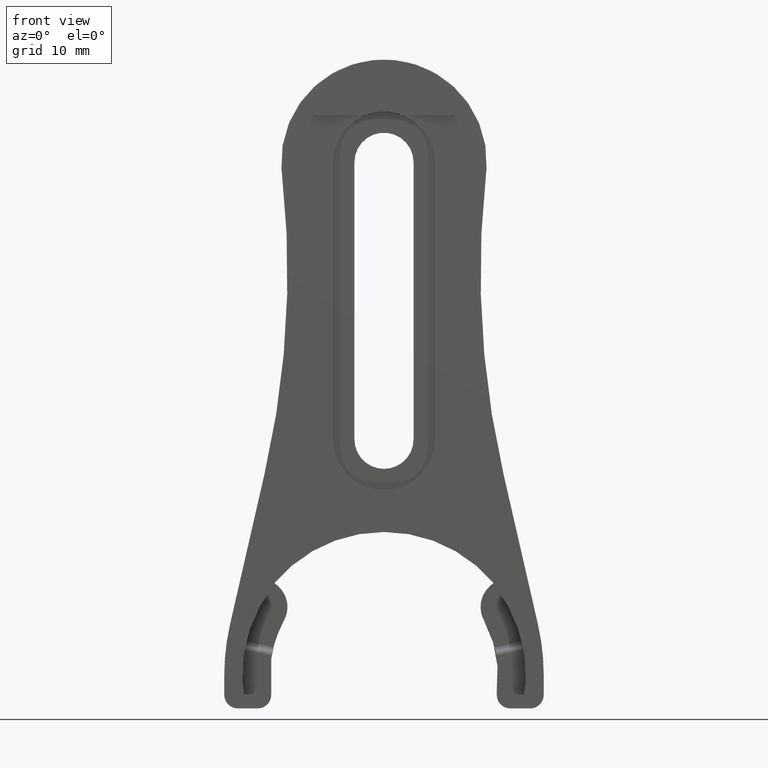
[diagram: clean part render]
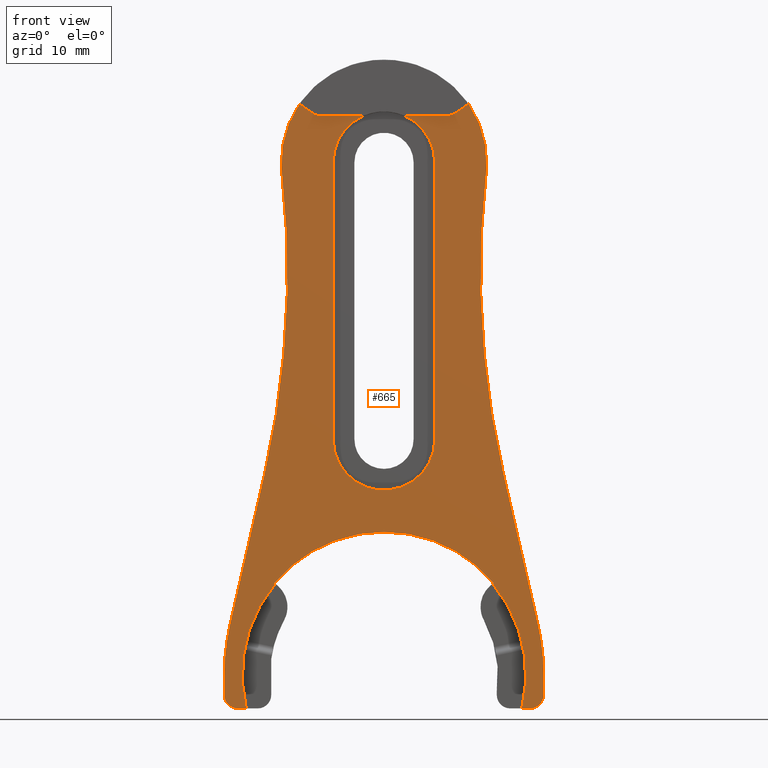
[diagram: same view with one face highlighted and labeled with its STEP entity id]
A machine part, front view. The second image highlights one B-rep face of the part: STEP entity #665.
In plain terms, the highlighted planar face has unit normal (0, 1, 0).
Its self-contained STEP definition (entity closure, byte-faithful):
#5 = CARTESIAN_POINT ( 'NONE',  ( -0.2849996849746324100, -0.2249999999999999800, 0.0007937572898362559900 ) ) ;
#19 = VECTOR ( 'NONE', #528, 39.37007874015748100 ) ;
#25 = CIRCLE ( 'NONE', #451, 0.06299999999999984800 ) ;
#31 = VERTEX_POINT ( 'NONE', #3919 ) ;
#35 = CARTESIAN_POINT ( 'NONE',  ( 0.3784321572365807500, -0.2249999999999999800, 2.556513101716277900 ) ) ;
#46 = DIRECTION ( 'NONE',  ( 0.0000000000000000000, 0.0000000000000000000, -1.000000000000000000 ) ) ;
#55 = VERTEX_POINT ( 'NONE', #1905 ) ;
#62 = DIRECTION ( 'NONE',  ( 0.0000000000000000000, 1.000000000000000000, 0.0000000000000000000 ) ) ;
#78 = VERTEX_POINT ( 'NONE', #1536 ) ;
#80 = VECTOR ( 'NONE', #1151, 39.37007874015748900 ) ;
#123 = LINE ( 'NONE', #160, #1881 ) ;
#136 = ORIENTED_EDGE ( 'NONE', *, *, #2587, .T. ) ;
#147 = ORIENTED_EDGE ( 'NONE', *, *, #1682, .F. ) ;
#160 = CARTESIAN_POINT ( 'NONE',  ( -0.6899999999999998400, -0.2249999999999999800, 0.2230000000000000600 ) ) ;
#175 = CARTESIAN_POINT ( 'NONE',  ( 0.2849999999999999800, -0.2249999999999999800, 2.567999999999998700 ) ) ;
#177 = ORIENTED_EDGE ( 'NONE', *, *, #2268, .T. ) ;
#181 = CARTESIAN_POINT ( 'NONE',  ( -0.7149999999999999700, -0.2249999999999999800, 0.0000000000000000000 ) ) ;
#195 = EDGE_CURVE ( 'NONE', #2844, #1072, #481, .T. ) ;
#196 = EDGE_CURVE ( 'NONE', #1206, #3491, #360, .T. ) ;
#209 = VERTEX_POINT ( 'NONE', #3018 ) ;
#224 = CARTESIAN_POINT ( 'NONE',  ( 0.0000000000000000000, -0.2250000000000141300, 0.6400000000000000100 ) ) ;
#228 = DIRECTION ( 'NONE',  ( -0.0000000000000000000, 1.000000000000000000, -0.0000000000000000000 ) ) ;
#230 = ORIENTED_EDGE ( 'NONE', *, *, #195, .T. ) ;
#250 = ORIENTED_EDGE ( 'NONE', *, *, #3840, .T. ) ;
#284 = EDGE_CURVE ( 'NONE', #1185, #3429, #2895, .T. ) ;
#289 = DIRECTION ( 'NONE',  ( -0.0000000000000000000, -1.000000000000000000, -0.0000000000000000000 ) ) ;
#323 = ORIENTED_EDGE ( 'NONE', *, *, #284, .F. ) ;
#326 = EDGE_CURVE ( 'NONE', #1101, #1359, #2036, .T. ) ;
#331 = DIRECTION ( 'NONE',  ( -1.821231995776174300E-015, 0.0000000000000000000, -1.000000000000000000 ) ) ;
#338 = CARTESIAN_POINT ( 'NONE',  ( 0.7149999999999998600, -0.2249999999999999800, -0.09000000000000017700 ) ) ;
#344 = CARTESIAN_POINT ( 'NONE',  ( -0.2274999999999999500, -0.2249999999999999800, 1.055000000000000200 ) ) ;
#350 = ORIENTED_EDGE ( 'NONE', *, *, #4082, .F. ) ;
#352 = VECTOR ( 'NONE', #847, 39.37007874015748100 ) ;
#354 = DIRECTION ( 'NONE',  ( 0.0000000000000000000, 0.0000000000000000000, -1.000000000000000000 ) ) ;
#360 = CIRCLE ( 'NONE', #614, 0.4600000000000000200 ) ;
#363 = ORIENTED_EDGE ( 'NONE', *, *, #785, .T. ) ;
#417 = ORIENTED_EDGE ( 'NONE', *, *, #3494, .T. ) ;
#433 = VECTOR ( 'NONE', #4036, 39.37007874015748100 ) ;
#451 = AXIS2_PLACEMENT_3D ( 'NONE', #3451, #1428, #3790 ) ;
#452 = CARTESIAN_POINT ( 'NONE',  ( 0.6899999999999998400, -0.2249999999999999800, 0.2230000000000000600 ) ) ;
#456 = CARTESIAN_POINT ( 'NONE',  ( -0.7149999999999999700, -0.2249999999999999800, -0.1499999999999999700 ) ) ;
#481 = CIRCLE ( 'NONE', #4346, 0.2274999999999999500 ) ;
#506 = CIRCLE ( 'NONE', #3169, 0.05999999999999999800 ) ;
#526 = CARTESIAN_POINT ( 'NONE',  ( 0.6170291727301068200, -0.2249999999999999800, -0.1500000000000000500 ) ) ;
#528 = DIRECTION ( 'NONE',  ( -0.0000000000000000000, -0.0000000000000000000, 1.000000000000000000 ) ) ;
#577 = DIRECTION ( 'NONE',  ( 0.0000000000000000000, -1.000000000000000000, 0.0000000000000000000 ) ) ;
#596 = ORIENTED_EDGE ( 'NONE', *, *, #1125, .T. ) ;
#599 = CARTESIAN_POINT ( 'NONE',  ( -0.6550000000000000300, -0.2249999999999999800, -0.08999999999999996900 ) ) ;
#607 = ORIENTED_EDGE ( 'NONE', *, *, #1358, .F. ) ;
#613 = CARTESIAN_POINT ( 'NONE',  ( 0.2849996849746330200, -0.2249999999999999800, 2.504999999999999400 ) ) ;
#614 = AXIS2_PLACEMENT_3D ( 'NONE', #3667, #1984, #1668 ) ;
#622 = EDGE_CURVE ( 'NONE', #2873, #4094, #1728, .T. ) ;
#635 = VERTEX_POINT ( 'NONE', #35 ) ;
#646 = DIRECTION ( 'NONE',  ( -0.0000000000000000000, 1.000000000000000000, -0.0000000000000000000 ) ) ;
#665 = ADVANCED_FACE ( 'NONE', ( #3787 ), #2010, .F. ) ;
#666 = DIRECTION ( 'NONE',  ( 0.0000000000000000000, 1.000000000000000000, 0.0000000000000000000 ) ) ;
#703 = CARTESIAN_POINT ( 'NONE',  ( 0.4902684435961454100, -0.2250000000000141300, 0.4113840701993857800 ) ) ;
#717 = CARTESIAN_POINT ( 'NONE',  ( -0.7149999999999999700, -0.2249999999999999800, -0.08999999999999996900 ) ) ;
#735 = EDGE_LOOP ( 'NONE', ( #3955, #4055, #1128, #230, #3246, #136, #2714, #596, #858, #3245, #1178, #1529, #147, #323, #3270, #2706, #3552, #3825, #250, #3813, #417, #3688, #2155, #2412, #177, #3184, #607, #350, #2296, #957, #2833, #2908, #363 ) ) ;
#762 = CARTESIAN_POINT ( 'NONE',  ( 0.6549999999999998000, -0.2249999999999999800, -0.09000000000000008000 ) ) ;
#768 = CARTESIAN_POINT ( 'NONE',  ( -0.6550000000000000300, -0.2249999999999999800, -0.1499999999999999700 ) ) ;
#774 = VERTEX_POINT ( 'NONE', #3940 ) ;
#785 = EDGE_CURVE ( 'NONE', #55, #2630, #4190, .T. ) ;
#791 = DIRECTION ( 'NONE',  ( 0.0000000000000000000, 1.000000000000000000, 0.0000000000000000000 ) ) ;
#794 = VERTEX_POINT ( 'NONE', #526 ) ;
#802 = CARTESIAN_POINT ( 'NONE',  ( -0.4902684435961483500, -0.2250000000000141300, 0.4113840701993823900 ) ) ;
#804 = DIRECTION ( 'NONE',  ( -1.000000000000000000, -0.0000000000000000000, -0.0000000000000000000 ) ) ;
#826 = AXIS2_PLACEMENT_3D ( 'NONE', #1329, #3711, #3366 ) ;
#837 = VECTOR ( 'NONE', #2793, 39.37007874015748900 ) ;
#847 = DIRECTION ( 'NONE',  ( -0.8191520442889910200, 0.0000000000000000000, -0.5735764363510472700 ) ) ;
#858 = ORIENTED_EDGE ( 'NONE', *, *, #4070, .T. ) ;
#882 = VERTEX_POINT ( 'NONE', #224 ) ;
#887 = VECTOR ( 'NONE', #2172, 39.37007874015748900 ) ;
#892 = VERTEX_POINT ( 'NONE', #4307 ) ;
#899 = EDGE_CURVE ( 'NONE', #2934, #209, #2562, .T. ) ;
#933 = CARTESIAN_POINT ( 'NONE',  ( 0.0000000000000000000, -0.2249999999999999800, 1.055000000000000200 ) ) ;
#941 = VERTEX_POINT ( 'NONE', #3608 ) ;
#942 = LINE ( 'NONE', #181, #19 ) ;
#957 = ORIENTED_EDGE ( 'NONE', *, *, #899, .F. ) ;
#962 = DIRECTION ( 'NONE',  ( 0.0000000000000000000, 0.0000000000000000000, 1.000000000000000000 ) ) ;
#966 = EDGE_CURVE ( 'NONE', #941, #794, #3333, .T. ) ;
#998 = DIRECTION ( 'NONE',  ( -0.7660444431189819000, 0.0000000000000000000, 0.6427876096865347000 ) ) ;
#999 = LINE ( 'NONE', #452, #887 ) ;
#1049 = CARTESIAN_POINT ( 'NONE',  ( 0.7149999999999999700, -0.2249999999999999800, 0.0000000000000000000 ) ) ;
#1071 = CARTESIAN_POINT ( 'NONE',  ( 0.1676355296195836400, -0.2249999999999999800, 0.1406629110760007600 ) ) ;
#1072 = VERTEX_POINT ( 'NONE', #344 ) ;
#1075 = VERTEX_POINT ( 'NONE', #703 ) ;
#1081 = VERTEX_POINT ( 'NONE', #3098 ) ;
#1101 = VERTEX_POINT ( 'NONE', #1049 ) ;
#1111 = DIRECTION ( 'NONE',  ( 0.0000000000000000000, 0.0000000000000000000, 1.000000000000000000 ) ) ;
#1117 = DIRECTION ( 'NONE',  ( 0.0000000000000000000, 0.0000000000000000000, -1.000000000000000000 ) ) ;
#1125 = EDGE_CURVE ( 'NONE', #3630, #2568, #25, .T. ) ;
#1128 = ORIENTED_EDGE ( 'NONE', *, *, #1208, .T. ) ;
#1130 = EDGE_CURVE ( 'NONE', #1075, #941, #1775, .T. ) ;
#1151 = DIRECTION ( 'NONE',  ( -0.8191520442889939100, 0.0000000000000000000, 0.5735764363510429400 ) ) ;
#1167 = CIRCLE ( 'NONE', #1193, 0.2275000000000002300 ) ;
#1178 = ORIENTED_EDGE ( 'NONE', *, *, #3409, .F. ) ;
#1185 = VERTEX_POINT ( 'NONE', #3130 ) ;
#1193 = AXIS2_PLACEMENT_3D ( 'NONE', #2146, #62, #2486 ) ;
#1206 = VERTEX_POINT ( 'NONE', #4162 ) ;
#1208 = EDGE_CURVE ( 'NONE', #892, #2844, #4347, .T. ) ;
#1209 = VERTEX_POINT ( 'NONE', #768 ) ;
#1217 = CARTESIAN_POINT ( 'NONE',  ( 1.810957896106150000E-017, -0.2249999999999999800, -6.829619984160658000E-017 ) ) ;
#1257 = DIRECTION ( 'NONE',  ( 0.0000000000000000000, 0.0000000000000000000, 1.000000000000000000 ) ) ;
#1329 = CARTESIAN_POINT ( 'NONE',  ( 0.2849996849746330200, -0.2249999999999999800, 0.0007937572898361861600 ) ) ;
#1333 = AXIS2_PLACEMENT_3D ( 'NONE', #175, #2599, #4250 ) ;
#1338 = VERTEX_POINT ( 'NONE', #3396 ) ;
#1352 = CIRCLE ( 'NONE', #1859, 4.000000000000000000 ) ;
#1353 = CARTESIAN_POINT ( 'NONE',  ( 0.5350000000000001400, -0.2249999999999999800, 0.8999999999999999100 ) ) ;
#1358 = EDGE_CURVE ( 'NONE', #2025, #1101, #1849, .T. ) ;
#1359 = VERTEX_POINT ( 'NONE', #338 ) ;
#1375 = AXIS2_PLACEMENT_3D ( 'NONE', #762, #3155, #1111 ) ;
#1392 = DIRECTION ( 'NONE',  ( 0.0000000000000000000, 1.000000000000000000, 0.0000000000000000000 ) ) ;
#1428 = DIRECTION ( 'NONE',  ( 0.0000000000000000000, 1.000000000000000000, 0.0000000000000000000 ) ) ;
#1429 = DIRECTION ( 'NONE',  ( 0.0000000000000000000, 1.000000000000000000, -0.0000000000000000000 ) ) ;
#1486 = LINE ( 'NONE', #613, #433 ) ;
#1491 = AXIS2_PLACEMENT_3D ( 'NONE', #3423, #1392, #3759 ) ;
#1529 = ORIENTED_EDGE ( 'NONE', *, *, #1741, .F. ) ;
#1536 = CARTESIAN_POINT ( 'NONE',  ( -0.5350000000000001400, -0.2249999999999999800, 0.8999999999999996900 ) ) ;
#1541 = CARTESIAN_POINT ( 'NONE',  ( -0.8850572770502087600, -0.2249999999999999800, 1.671808275380343200 ) ) ;
#1555 = DIRECTION ( 'NONE',  ( 0.0000000000000000000, 1.000000000000000000, 0.0000000000000000000 ) ) ;
#1570 = DIRECTION ( 'NONE',  ( 0.0000000000000000000, 0.0000000000000000000, 1.000000000000000000 ) ) ;
#1668 = DIRECTION ( 'NONE',  ( 0.0000000000000000000, 0.0000000000000000000, -1.000000000000000000 ) ) ;
#1682 = EDGE_CURVE ( 'NONE', #3429, #78, #123, .T. ) ;
#1687 = EDGE_CURVE ( 'NONE', #2721, #1185, #942, .T. ) ;
#1690 = CARTESIAN_POINT ( 'NONE',  ( -0.3211353154901163700, -0.2249999999999999800, 2.516393421209793100 ) ) ;
#1728 = CIRCLE ( 'NONE', #2311, 0.6350000000000002300 ) ;
#1741 = EDGE_CURVE ( 'NONE', #78, #774, #1352, .T. ) ;
#1746 = CIRCLE ( 'NONE', #1848, 0.4600000000000000200 ) ;
#1775 = LINE ( 'NONE', #1071, #837 ) ;
#1804 = AXIS2_PLACEMENT_3D ( 'NONE', #2319, #3299, #1257 ) ;
#1814 = DIRECTION ( 'NONE',  ( 0.0000000000000000000, 0.0000000000000000000, -1.000000000000000000 ) ) ;
#1848 = AXIS2_PLACEMENT_3D ( 'NONE', #2730, #646, #3050 ) ;
#1849 = CIRCLE ( 'NONE', #3656, 0.9999999999999998900 ) ;
#1859 = AXIS2_PLACEMENT_3D ( 'NONE', #2658, #577, #1814 ) ;
#1881 = VECTOR ( 'NONE', #4241, 39.37007874015748900 ) ;
#1905 = CARTESIAN_POINT ( 'NONE',  ( 0.3211353154901165900, -0.2249999999999999800, 2.516393421209793600 ) ) ;
#1984 = DIRECTION ( 'NONE',  ( -0.0000000000000000000, 1.000000000000000000, -0.0000000000000000000 ) ) ;
#2007 = LINE ( 'NONE', #3467, #2825 ) ;
#2010 = PLANE ( 'NONE',  #826 ) ;
#2025 = VERTEX_POINT ( 'NONE', #2565 ) ;
#2027 = EDGE_CURVE ( 'NONE', #635, #55, #3096, .T. ) ;
#2036 = LINE ( 'NONE', #2082, #3831 ) ;
#2053 = CARTESIAN_POINT ( 'NONE',  ( -0.3784321572365806900, -0.2249999999999999800, 2.556513101716275700 ) ) ;
#2073 = AXIS2_PLACEMENT_3D ( 'NONE', #2865, #791, #3181 ) ;
#2082 = CARTESIAN_POINT ( 'NONE',  ( 0.7149999999999999700, -0.2249999999999999800, 0.0000000000000000000 ) ) ;
#2103 = CARTESIAN_POINT ( 'NONE',  ( -0.2850000000000002500, -0.2249999999999999800, 2.504999999999999400 ) ) ;
#2115 = AXIS2_PLACEMENT_3D ( 'NONE', #2374, #289, #2711 ) ;
#2146 = CARTESIAN_POINT ( 'NONE',  ( 5.463695987328526400E-016, -0.2249999999999999800, 2.294999999999999900 ) ) ;
#2155 = ORIENTED_EDGE ( 'NONE', *, *, #966, .T. ) ;
#2172 = DIRECTION ( 'NONE',  ( 0.2231766508733264700, -0.0000000000000000000, -0.9747780170402722300 ) ) ;
#2268 = EDGE_CURVE ( 'NONE', #1081, #1359, #3676, .T. ) ;
#2277 = CARTESIAN_POINT ( 'NONE',  ( -0.4864382213805534800, -0.2249999999999999800, 0.4081701321509497700 ) ) ;
#2287 = AXIS2_PLACEMENT_3D ( 'NONE', #2745, #666, #3065 ) ;
#2296 = ORIENTED_EDGE ( 'NONE', *, *, #2492, .F. ) ;
#2305 = CARTESIAN_POINT ( 'NONE',  ( -0.2046132197974701600, -0.2249999999999999800, 2.282413090764213100 ) ) ;
#2311 = AXIS2_PLACEMENT_3D ( 'NONE', #3792, #1429, #3453 ) ;
#2319 = CARTESIAN_POINT ( 'NONE',  ( 0.2849996849746330200, -0.2249999999999999800, 0.0007937572898361861600 ) ) ;
#2338 = VECTOR ( 'NONE', #46, 39.37007874015748100 ) ;
#2373 = EDGE_CURVE ( 'NONE', #3377, #882, #2572, .T. ) ;
#2374 = CARTESIAN_POINT ( 'NONE',  ( 4.432180960576690000, -0.2249999999999999800, 1.801099639617371100 ) ) ;
#2389 = CARTESIAN_POINT ( 'NONE',  ( 0.08750000000000125700, -0.2249999999999999800, 2.504999999999999400 ) ) ;
#2412 = ORIENTED_EDGE ( 'NONE', *, *, #3712, .F. ) ;
#2438 = DIRECTION ( 'NONE',  ( -0.0000000000000000000, 1.000000000000000000, -0.0000000000000000000 ) ) ;
#2474 = CARTESIAN_POINT ( 'NONE',  ( -0.2274999999999999500, -0.2249999999999999800, 0.0007937572898361861600 ) ) ;
#2486 = DIRECTION ( 'NONE',  ( 0.0000000000000000000, 0.0000000000000000000, 1.000000000000000000 ) ) ;
#2492 = EDGE_CURVE ( 'NONE', #209, #3571, #4053, .T. ) ;
#2493 = EDGE_CURVE ( 'NONE', #2630, #3485, #1486, .T. ) ;
#2523 = VECTOR ( 'NONE', #998, 39.37007874015748100 ) ;
#2546 = CIRCLE ( 'NONE', #1491, 0.2275000000000002300 ) ;
#2562 = CIRCLE ( 'NONE', #3166, 0.2550000000000047800 ) ;
#2565 = CARTESIAN_POINT ( 'NONE',  ( 0.6899999999999996100, -0.2249999999999999800, 0.2229999999999999500 ) ) ;
#2568 = VERTEX_POINT ( 'NONE', #1690 ) ;
#2572 = CIRCLE ( 'NONE', #2073, 0.6400000000000000100 ) ;
#2587 = EDGE_CURVE ( 'NONE', #1338, #31, #2546, .T. ) ;
#2599 = DIRECTION ( 'NONE',  ( 0.0000000000000000000, 1.000000000000000000, 0.0000000000000000000 ) ) ;
#2630 = VERTEX_POINT ( 'NONE', #4431 ) ;
#2649 = DIRECTION ( 'NONE',  ( 0.0000000000000000000, 0.0000000000000000000, -1.000000000000000000 ) ) ;
#2652 = CIRCLE ( 'NONE', #2287, 0.6400000000000000100 ) ;
#2658 = CARTESIAN_POINT ( 'NONE',  ( -4.432180960576689100, -0.2249999999999999800, 1.801099639617372200 ) ) ;
#2661 = CARTESIAN_POINT ( 'NONE',  ( -0.6899999999999998400, -0.2249999999999999800, 0.2230000000000000600 ) ) ;
#2704 = DIRECTION ( 'NONE',  ( 0.0000000000000000000, 0.0000000000000000000, 1.000000000000000000 ) ) ;
#2706 = ORIENTED_EDGE ( 'NONE', *, *, #4185, .T. ) ;
#2711 = DIRECTION ( 'NONE',  ( 0.0000000000000000000, 0.0000000000000000000, 1.000000000000000000 ) ) ;
#2714 = ORIENTED_EDGE ( 'NONE', *, *, #3904, .T. ) ;
#2721 = VERTEX_POINT ( 'NONE', #717 ) ;
#2730 = CARTESIAN_POINT ( 'NONE',  ( 5.948718976097601300E-016, -0.2249999999999999800, 2.294999999999999500 ) ) ;
#2731 = LINE ( 'NONE', #3192, #80 ) ;
#2745 = CARTESIAN_POINT ( 'NONE',  ( 0.0000000000000000000, -0.2250000000000141300, 0.0000000000000000000 ) ) ;
#2760 = EDGE_CURVE ( 'NONE', #2873, #1209, #3266, .T. ) ;
#2793 = DIRECTION ( 'NONE',  ( -0.7660444431189769000, 0.0000000000000000000, -0.6427876096865405800 ) ) ;
#2825 = VECTOR ( 'NONE', #3129, 39.37007874015748100 ) ;
#2833 = ORIENTED_EDGE ( 'NONE', *, *, #3472, .F. ) ;
#2840 = CARTESIAN_POINT ( 'NONE',  ( 0.2274999999999999500, -0.2249999999999999800, 0.0007937572898361861600 ) ) ;
#2844 = VERTEX_POINT ( 'NONE', #4258 ) ;
#2865 = CARTESIAN_POINT ( 'NONE',  ( 0.0000000000000000000, -0.2250000000000141300, 0.0000000000000000000 ) ) ;
#2873 = VERTEX_POINT ( 'NONE', #3936 ) ;
#2891 = VECTOR ( 'NONE', #3797, 39.37007874015748100 ) ;
#2895 = CIRCLE ( 'NONE', #1804, 1.000000000000000400 ) ;
#2908 = ORIENTED_EDGE ( 'NONE', *, *, #2027, .T. ) ;
#2934 = VERTEX_POINT ( 'NONE', #4294 ) ;
#3014 = DIRECTION ( 'NONE',  ( -0.0000000000000000000, -1.000000000000000000, -0.0000000000000000000 ) ) ;
#3018 = CARTESIAN_POINT ( 'NONE',  ( 0.4570000000000000700, -0.2249999999999999800, 2.245999999999997800 ) ) ;
#3050 = DIRECTION ( 'NONE',  ( 0.0000000000000000000, 0.0000000000000000000, -1.000000000000000000 ) ) ;
#3065 = DIRECTION ( 'NONE',  ( 0.0000000000000000000, 0.0000000000000000000, 1.000000000000000000 ) ) ;
#3072 = CARTESIAN_POINT ( 'NONE',  ( 0.1668538312865451600, -0.2249999999999999800, -0.1400069882930541100 ) ) ;
#3096 = LINE ( 'NONE', #1541, #352 ) ;
#3098 = CARTESIAN_POINT ( 'NONE',  ( 0.6549999999999998000, -0.2249999999999999800, -0.1500000000000000800 ) ) ;
#3129 = DIRECTION ( 'NONE',  ( -1.000000000000000000, -0.0000000000000000000, 5.691349986800564600E-016 ) ) ;
#3130 = CARTESIAN_POINT ( 'NONE',  ( -0.7149999999999999700, -0.2249999999999999800, 0.0000000000000000000 ) ) ;
#3155 = DIRECTION ( 'NONE',  ( -0.0000000000000000000, -1.000000000000000000, -0.0000000000000000000 ) ) ;
#3166 = AXIS2_PLACEMENT_3D ( 'NONE', #3576, #1555, #3908 ) ;
#3169 = AXIS2_PLACEMENT_3D ( 'NONE', #599, #3014, #962 ) ;
#3181 = DIRECTION ( 'NONE',  ( 0.0000000000000000000, 0.0000000000000000000, 1.000000000000000000 ) ) ;
#3183 = EDGE_CURVE ( 'NONE', #1338, #1072, #3229, .T. ) ;
#3184 = ORIENTED_EDGE ( 'NONE', *, *, #326, .F. ) ;
#3192 = CARTESIAN_POINT ( 'NONE',  ( 1.267532595127633500, -0.2249999999999999800, 1.403996174483384200 ) ) ;
#3229 = LINE ( 'NONE', #2474, #2338 ) ;
#3245 = ORIENTED_EDGE ( 'NONE', *, *, #196, .F. ) ;
#3246 = ORIENTED_EDGE ( 'NONE', *, *, #3183, .F. ) ;
#3266 = LINE ( 'NONE', #456, #4052 ) ;
#3270 = ORIENTED_EDGE ( 'NONE', *, *, #1687, .F. ) ;
#3299 = DIRECTION ( 'NONE',  ( 0.0000000000000000000, 1.000000000000000000, 0.0000000000000000000 ) ) ;
#3326 = DIRECTION ( 'NONE',  ( 0.0000000000000000000, 1.000000000000000000, 0.0000000000000000000 ) ) ;
#3333 = CIRCLE ( 'NONE', #3382, 0.6350000000000002300 ) ;
#3364 = VECTOR ( 'NONE', #1117, 39.37007874015748100 ) ;
#3366 = DIRECTION ( 'NONE',  ( 0.0000000000000000000, -0.0000000000000000000, 1.000000000000000000 ) ) ;
#3377 = VERTEX_POINT ( 'NONE', #802 ) ;
#3382 = AXIS2_PLACEMENT_3D ( 'NONE', #1217, #3589, #1570 ) ;
#3395 = AXIS2_PLACEMENT_3D ( 'NONE', #2305, #228, #2649 ) ;
#3396 = CARTESIAN_POINT ( 'NONE',  ( -0.2274999999999999500, -0.2249999999999999800, 2.294999999999999500 ) ) ;
#3409 = EDGE_CURVE ( 'NONE', #774, #1206, #3441, .T. ) ;
#3423 = CARTESIAN_POINT ( 'NONE',  ( 5.463695987328526400E-016, -0.2249999999999999800, 2.294999999999999900 ) ) ;
#3429 = VERTEX_POINT ( 'NONE', #2661 ) ;
#3441 = CIRCLE ( 'NONE', #3395, 0.2550000000000047800 ) ;
#3451 = CARTESIAN_POINT ( 'NONE',  ( -0.2849999999999999200, -0.2249999999999999800, 2.567999999999999600 ) ) ;
#3453 = DIRECTION ( 'NONE',  ( 0.0000000000000000000, 0.0000000000000000000, 1.000000000000000000 ) ) ;
#3467 = CARTESIAN_POINT ( 'NONE',  ( 0.5050000000000003400, -0.2249999999999999800, -0.1499999999999999900 ) ) ;
#3472 = EDGE_CURVE ( 'NONE', #635, #2934, #1746, .T. ) ;
#3485 = VERTEX_POINT ( 'NONE', #2389 ) ;
#3491 = VERTEX_POINT ( 'NONE', #2053 ) ;
#3494 = EDGE_CURVE ( 'NONE', #882, #1075, #2652, .T. ) ;
#3552 = ORIENTED_EDGE ( 'NONE', *, *, #2760, .F. ) ;
#3571 = VERTEX_POINT ( 'NONE', #1353 ) ;
#3576 = CARTESIAN_POINT ( 'NONE',  ( 0.2046132197974713200, -0.2249999999999999800, 2.282413090764213100 ) ) ;
#3589 = DIRECTION ( 'NONE',  ( 0.0000000000000000000, 1.000000000000000000, -0.0000000000000000000 ) ) ;
#3608 = CARTESIAN_POINT ( 'NONE',  ( 0.4864382213805507600, -0.2249999999999999800, 0.4081701321509532100 ) ) ;
#3630 = VERTEX_POINT ( 'NONE', #2103 ) ;
#3656 = AXIS2_PLACEMENT_3D ( 'NONE', #5, #2438, #354 ) ;
#3667 = CARTESIAN_POINT ( 'NONE',  ( 5.948718976097601300E-016, -0.2249999999999999800, 2.294999999999999500 ) ) ;
#3676 = CIRCLE ( 'NONE', #1375, 0.05999999999999999800 ) ;
#3688 = ORIENTED_EDGE ( 'NONE', *, *, #1130, .T. ) ;
#3711 = DIRECTION ( 'NONE',  ( 0.0000000000000000000, 1.000000000000000000, 0.0000000000000000000 ) ) ;
#3712 = EDGE_CURVE ( 'NONE', #1081, #794, #2007, .T. ) ;
#3759 = DIRECTION ( 'NONE',  ( 0.0000000000000000000, 0.0000000000000000000, 1.000000000000000000 ) ) ;
#3765 = CARTESIAN_POINT ( 'NONE',  ( 0.2849996849746330200, -0.2249999999999999800, 2.504999999999999400 ) ) ;
#3772 = LINE ( 'NONE', #3765, #2891 ) ;
#3787 = FACE_OUTER_BOUND ( 'NONE', #735, .T. ) ;
#3790 = DIRECTION ( 'NONE',  ( 0.0000000000000000000, 0.0000000000000000000, 1.000000000000000000 ) ) ;
#3792 = CARTESIAN_POINT ( 'NONE',  ( 1.810957896106150000E-017, -0.2249999999999999800, -6.829619984160658000E-017 ) ) ;
#3797 = DIRECTION ( 'NONE',  ( -1.000000000000000000, 0.0000000000000000000, 0.0000000000000000000 ) ) ;
#3813 = ORIENTED_EDGE ( 'NONE', *, *, #2373, .T. ) ;
#3825 = ORIENTED_EDGE ( 'NONE', *, *, #622, .T. ) ;
#3831 = VECTOR ( 'NONE', #331, 39.37007874015748100 ) ;
#3840 = EDGE_CURVE ( 'NONE', #4094, #3377, #4283, .T. ) ;
#3904 = EDGE_CURVE ( 'NONE', #31, #3630, #3772, .T. ) ;
#3908 = DIRECTION ( 'NONE',  ( 0.0000000000000000000, 0.0000000000000000000, 1.000000000000000000 ) ) ;
#3919 = CARTESIAN_POINT ( 'NONE',  ( -0.08750000000000016100, -0.2249999999999999800, 2.504999999999999400 ) ) ;
#3936 = CARTESIAN_POINT ( 'NONE',  ( -0.6170291727301069300, -0.2249999999999999800, -0.1499999999999999700 ) ) ;
#3940 = CARTESIAN_POINT ( 'NONE',  ( -0.4569999999999989600, -0.2249999999999999800, 2.246000000000000000 ) ) ;
#3941 = EDGE_CURVE ( 'NONE', #3485, #892, #1167, .T. ) ;
#3955 = ORIENTED_EDGE ( 'NONE', *, *, #2493, .T. ) ;
#4036 = DIRECTION ( 'NONE',  ( -1.000000000000000000, 0.0000000000000000000, 0.0000000000000000000 ) ) ;
#4052 = VECTOR ( 'NONE', #804, 39.37007874015748100 ) ;
#4053 = CIRCLE ( 'NONE', #2115, 4.000000000000000000 ) ;
#4055 = ORIENTED_EDGE ( 'NONE', *, *, #3941, .T. ) ;
#4070 = EDGE_CURVE ( 'NONE', #2568, #3491, #2731, .T. ) ;
#4082 = EDGE_CURVE ( 'NONE', #3571, #2025, #999, .T. ) ;
#4094 = VERTEX_POINT ( 'NONE', #2277 ) ;
#4162 = CARTESIAN_POINT ( 'NONE',  ( -0.4591321029601886400, -0.2249999999999999800, 2.266756203666040000 ) ) ;
#4185 = EDGE_CURVE ( 'NONE', #2721, #1209, #506, .T. ) ;
#4190 = CIRCLE ( 'NONE', #1333, 0.06299999999999930700 ) ;
#4241 = DIRECTION ( 'NONE',  ( 0.2231766508733264700, 0.0000000000000000000, 0.9747780170402722300 ) ) ;
#4250 = DIRECTION ( 'NONE',  ( 0.0000000000000000000, 0.0000000000000000000, 1.000000000000000000 ) ) ;
#4258 = CARTESIAN_POINT ( 'NONE',  ( 0.2274999999999999500, -0.2249999999999999800, 1.055000000000000200 ) ) ;
#4283 = LINE ( 'NONE', #3072, #2523 ) ;
#4294 = CARTESIAN_POINT ( 'NONE',  ( 0.4591321029601897500, -0.2249999999999999800, 2.266756203666040000 ) ) ;
#4307 = CARTESIAN_POINT ( 'NONE',  ( 0.2274999999999999500, -0.2249999999999999800, 2.294999999999999500 ) ) ;
#4346 = AXIS2_PLACEMENT_3D ( 'NONE', #933, #3326, #2704 ) ;
#4347 = LINE ( 'NONE', #2840, #3364 ) ;
#4431 = CARTESIAN_POINT ( 'NONE',  ( 0.2849999999999999800, -0.2249999999999999800, 2.504999999999999400 ) ) ;